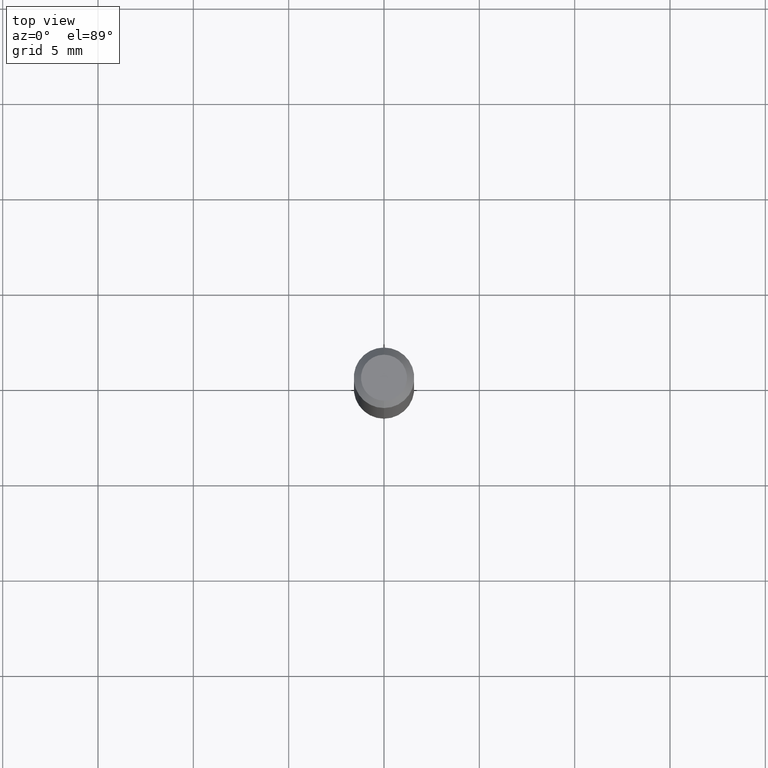
[diagram: clean part render]
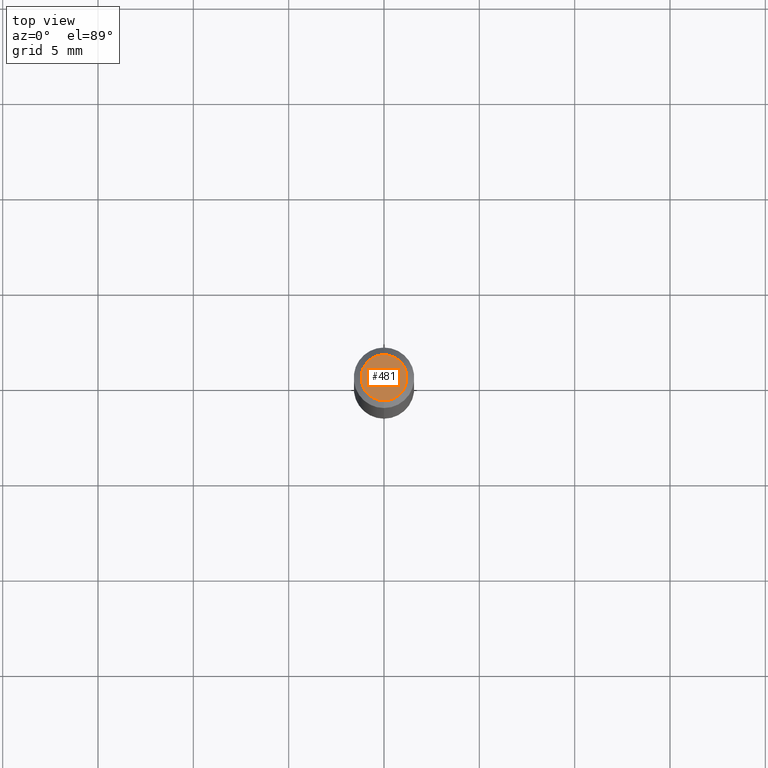
[diagram: same view with one face highlighted and labeled with its STEP entity id]
A machine part, top view. The second image highlights one B-rep face of the part: STEP entity #481.
In plain terms, the highlighted planar face has unit normal (0, -0, -1).
Its self-contained STEP definition (entity closure, byte-faithful):
#1 = AXIS2_PLACEMENT_3D ( 'NONE', #361, #288, #487 ) ;
#18 = EDGE_LOOP ( 'NONE', ( #232, #294 ) ) ;
#19 = CARTESIAN_POINT ( 'NONE',  ( -3.773273898774340269E-16, -0.04750000000000000749, 4.390195805009133719E-16 ) ) ;
#21 = AXIS2_PLACEMENT_3D ( 'NONE', #150, #34, #269 ) ;
#34 = DIRECTION ( 'NONE',  ( 2.445546592424236212E-29, -3.491369944521436528E-15, -1.000000000000000000 ) ) ;
#69 = FACE_OUTER_BOUND ( 'NONE', #18, .T. ) ;
#82 = AXIS2_PLACEMENT_3D ( 'NONE', #460, #458, #96 ) ;
#96 = DIRECTION ( 'NONE',  ( -6.982962677686265133E-15, -1.000000000000000000, 3.491369944521436133E-15 ) ) ;
#98 = EDGE_CURVE ( 'NONE', #457, #301, #478, .T. ) ;
#150 = CARTESIAN_POINT ( 'NONE',  ( 3.316907271900976589E-16, 0.04750000000000000749, -2.925031829669569822E-17 ) ) ;
#227 = EDGE_CURVE ( 'NONE', #301, #457, #266, .T. ) ;
#232 = ORIENTED_EDGE ( 'NONE', *, *, #98, .T. ) ;
#266 = CIRCLE ( 'NONE', #82, 0.04750000000000000749 ) ;
#269 = DIRECTION ( 'NONE',  ( 6.982962677686265922E-15, 1.000000000000000000, -3.491369944521436528E-15 ) ) ;
#288 = DIRECTION ( 'NONE',  ( -2.445546592424236492E-29, 3.491369944521436528E-15, 1.000000000000000000 ) ) ;
#294 = ORIENTED_EDGE ( 'NONE', *, *, #227, .T. ) ;
#301 = VERTEX_POINT ( 'NONE', #19 ) ;
#351 = PLANE ( 'NONE',  #21 ) ;
#361 = CARTESIAN_POINT ( 'NONE',  ( -6.680732152424787162E-45, 9.537707241656864652E-31, 2.731795081361451486E-16 ) ) ;
#457 = VERTEX_POINT ( 'NONE', #506 ) ;
#458 = DIRECTION ( 'NONE',  ( -2.445546592424236492E-29, 3.491369944521436528E-15, 1.000000000000000000 ) ) ;
#460 = CARTESIAN_POINT ( 'NONE',  ( -6.680732152424787162E-45, 9.537707241656864652E-31, 2.731795081361451486E-16 ) ) ;
#478 = CIRCLE ( 'NONE', #1, 0.04750000000000000749 ) ;
#481 = ADVANCED_FACE ( 'NONE', ( #69 ), #351, .F. ) ;
#487 = DIRECTION ( 'NONE',  ( -6.982962677686265133E-15, -1.000000000000000000, 3.491369944521436133E-15 ) ) ;
#506 = CARTESIAN_POINT ( 'NONE',  ( 3.840629472727447874E-16, 0.04750000000000000749, 1.073394357713768884E-16 ) ) ;